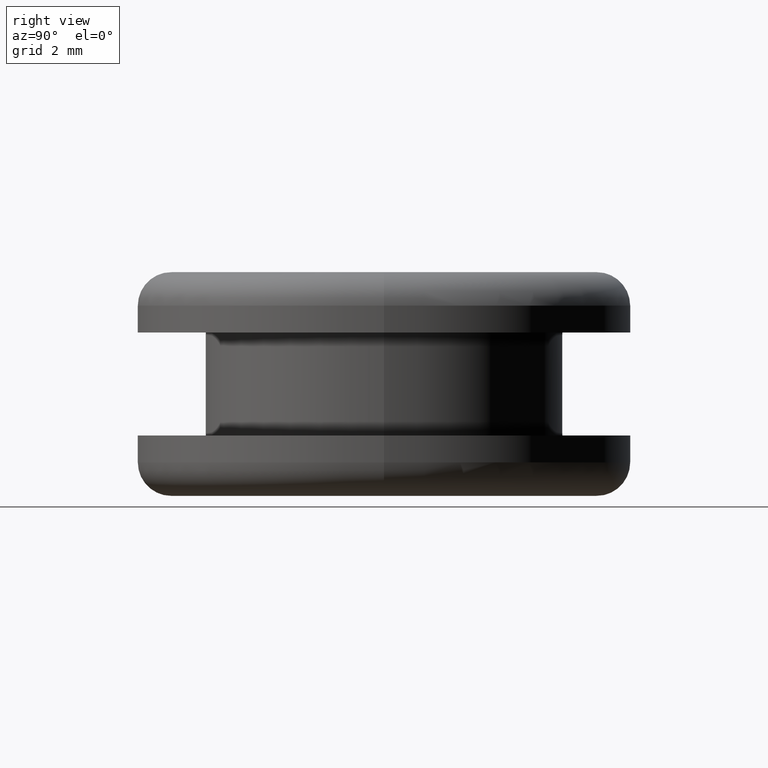
[diagram: clean part render]
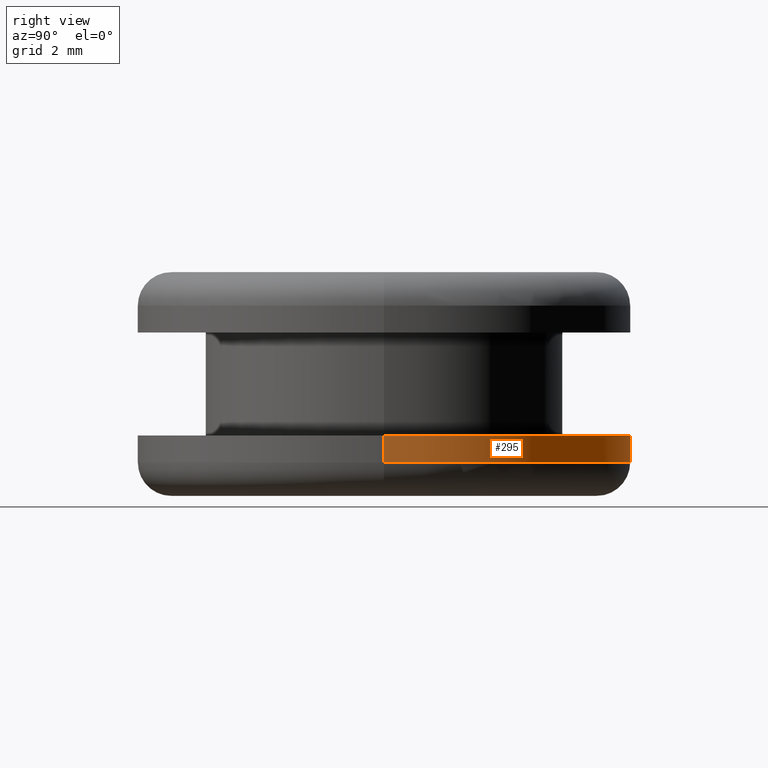
[diagram: same view with one face highlighted and labeled with its STEP entity id]
A machine part, right view. The second image highlights one B-rep face of the part: STEP entity #295.
In plain terms, the highlighted cylindrical surface (partial cylindrical patch) has radius 5.5 mm, axis along (0, 0, -1).
Its self-contained STEP definition (entity closure, byte-faithful):
#8 = VERTEX_POINT ( 'NONE', #103 ) ;
#26 = CARTESIAN_POINT ( 'NONE',  ( 103.4281270166739500, 0.0000000000000000000, 0.0000000000000000000 ) ) ;
#32 = CARTESIAN_POINT ( 'NONE',  ( 108.9281270167014100, 0.0000000000000000000, 134.9334774696090200 ) ) ;
#34 = EDGE_CURVE ( 'NONE', #268, #8, #179, .T. ) ;
#72 = ORIENTED_EDGE ( 'NONE', *, *, #76, .F. ) ;
#76 = EDGE_CURVE ( 'NONE', #198, #8, #292, .T. ) ;
#103 = CARTESIAN_POINT ( 'NONE',  ( 114.4281270167288900, 6.735557395344127400E-016, 134.3334774696090200 ) ) ;
#111 = ORIENTED_EDGE ( 'NONE', *, *, #123, .F. ) ;
#118 = EDGE_LOOP ( 'NONE', ( #450, #335, #72, #111 ) ) ;
#123 = EDGE_CURVE ( 'NONE', #260, #198, #428, .T. ) ;
#136 = CARTESIAN_POINT ( 'NONE',  ( 103.4281270166739100, 0.0000000000000000000, 134.3334774696090200 ) ) ;
#167 = DIRECTION ( 'NONE',  ( 0.0000000000000000000, 0.0000000000000000000, -1.000000000000000000 ) ) ;
#179 = LINE ( 'NONE', #430, #376 ) ;
#184 = CYLINDRICAL_SURFACE ( 'NONE', #373, 5.500000000027455400 ) ;
#198 = VERTEX_POINT ( 'NONE', #136 ) ;
#227 = VECTOR ( 'NONE', #269, 1000.000000000000000 ) ;
#247 = CARTESIAN_POINT ( 'NONE',  ( 114.4281270167288100, 6.735557395344025800E-016, 134.9334774696090200 ) ) ;
#260 = VERTEX_POINT ( 'NONE', #405 ) ;
#264 = DIRECTION ( 'NONE',  ( 0.0000000000000000000, 0.0000000000000000000, -1.000000000000000000 ) ) ;
#266 = CARTESIAN_POINT ( 'NONE',  ( 108.9281270167014100, 0.0000000000000000000, 134.3334774696090200 ) ) ;
#268 = VERTEX_POINT ( 'NONE', #247 ) ;
#269 = DIRECTION ( 'NONE',  ( 0.0000000000000000000, 0.0000000000000000000, -1.000000000000000000 ) ) ;
#286 = CARTESIAN_POINT ( 'NONE',  ( 108.9281270167014100, 0.0000000000000000000, 0.0000000000000000000 ) ) ;
#291 = DIRECTION ( 'NONE',  ( -1.000000000000000000, 0.0000000000000000000, 0.0000000000000000000 ) ) ;
#292 = CIRCLE ( 'NONE', #399, 5.500000000027497100 ) ;
#293 = DIRECTION ( 'NONE',  ( 0.0000000000000000000, 0.0000000000000000000, -1.000000000000000000 ) ) ;
#294 = FACE_OUTER_BOUND ( 'NONE', #118, .T. ) ;
#295 = ADVANCED_FACE ( 'NONE', ( #294 ), #184, .T. ) ;
#300 = CIRCLE ( 'NONE', #302, 5.500000000027399400 ) ;
#302 = AXIS2_PLACEMENT_3D ( 'NONE', #32, #459, #425 ) ;
#335 = ORIENTED_EDGE ( 'NONE', *, *, #34, .T. ) ;
#373 = AXIS2_PLACEMENT_3D ( 'NONE', #286, #293, #291 ) ;
#376 = VECTOR ( 'NONE', #167, 1000.000000000000000 ) ;
#397 = DIRECTION ( 'NONE',  ( -1.000000000000000000, 0.0000000000000000000, 0.0000000000000000000 ) ) ;
#399 = AXIS2_PLACEMENT_3D ( 'NONE', #266, #264, #397 ) ;
#405 = CARTESIAN_POINT ( 'NONE',  ( 103.4281270166740000, 0.0000000000000000000, 134.9334774696090200 ) ) ;
#425 = DIRECTION ( 'NONE',  ( -1.000000000000000000, 0.0000000000000000000, 0.0000000000000000000 ) ) ;
#428 = LINE ( 'NONE', #26, #227 ) ;
#430 = CARTESIAN_POINT ( 'NONE',  ( 114.4281270167288700, 6.735557395344059300E-016, 0.0000000000000000000 ) ) ;
#450 = ORIENTED_EDGE ( 'NONE', *, *, #457, .T. ) ;
#457 = EDGE_CURVE ( 'NONE', #260, #268, #300, .T. ) ;
#459 = DIRECTION ( 'NONE',  ( 0.0000000000000000000, 0.0000000000000000000, -1.000000000000000000 ) ) ;